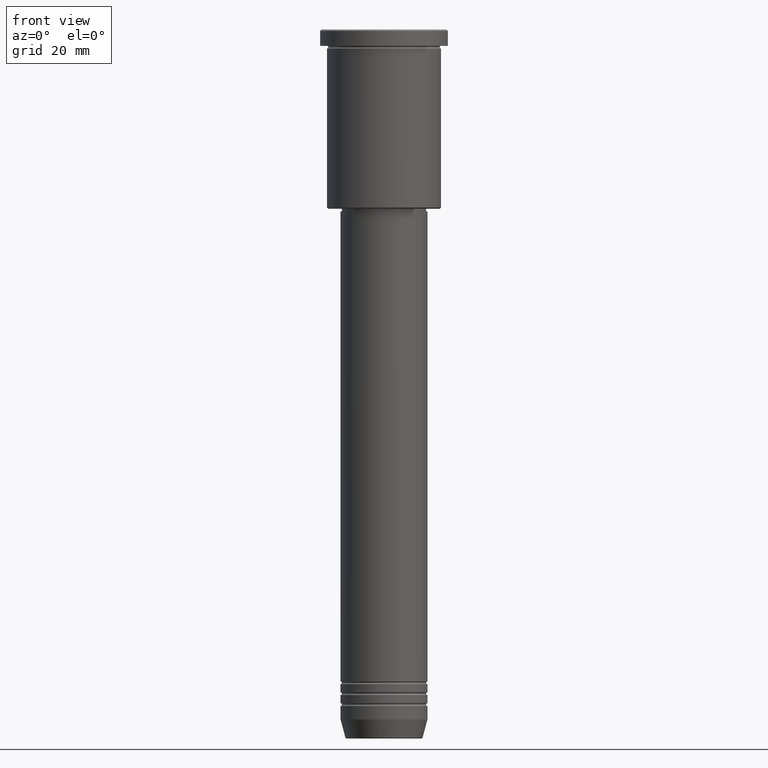
[diagram: clean part render]
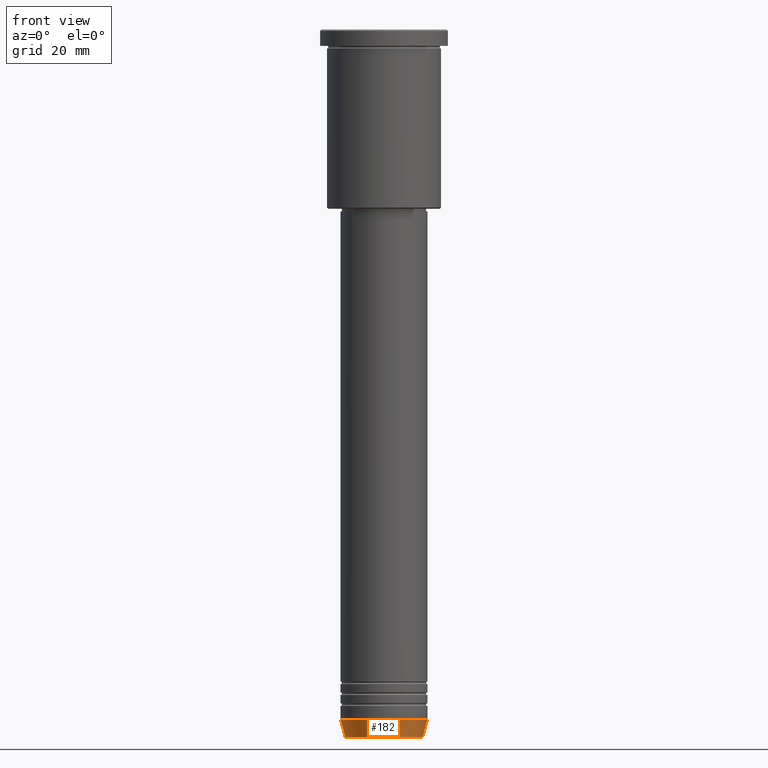
[diagram: same view with one face highlighted and labeled with its STEP entity id]
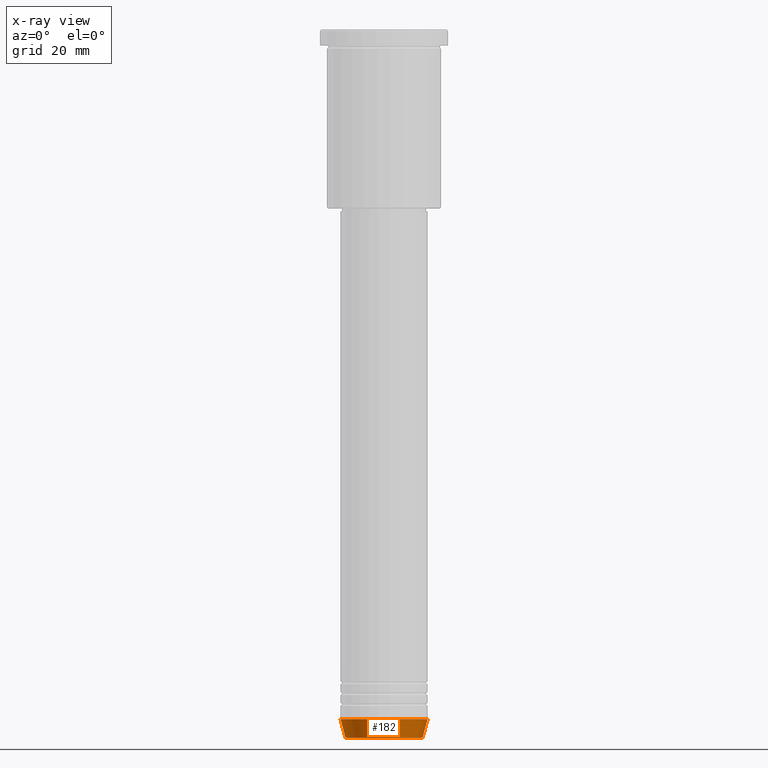
[diagram: x-ray of the same camera — body ghosted, the highlighted face saturated]
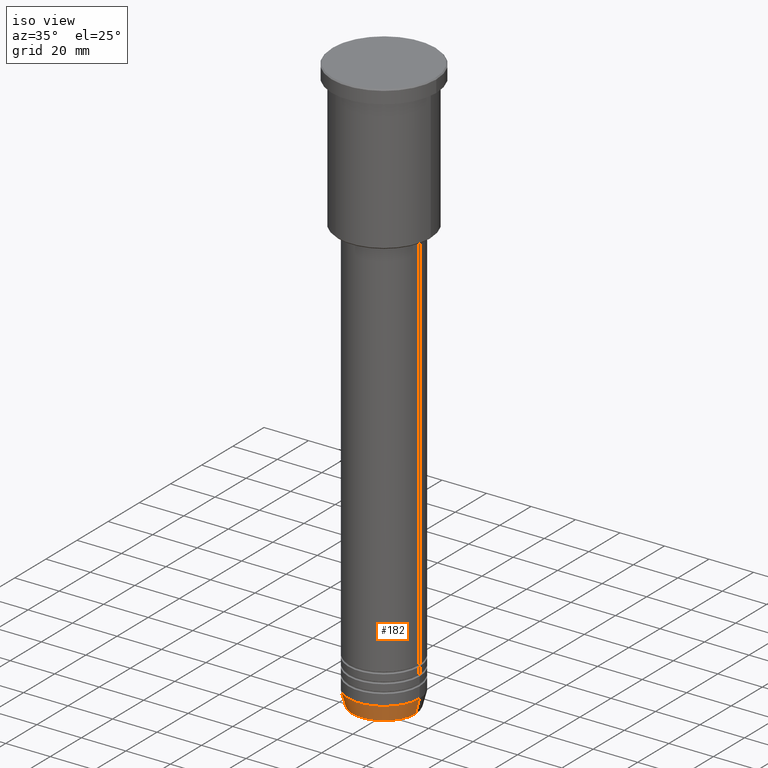
[diagram: same view with one face highlighted and labeled with its STEP entity id]
A machine part, front view. The second image highlights one B-rep face of the part: STEP entity #182.
The next image is the same camera in x-ray: the body ghosted, the highlighted face saturated — about 0% of this face is hidden behind the body in this view.
A second angle (iso view) of the same face is appended — the face is thin or edge-on in the first view.
In plain terms, the highlighted conical surface has half-angle 15 deg.
Its self-contained STEP definition (entity closure, byte-faithful):
#6 = AXIS2_PLACEMENT_3D ( 'NONE', #577, #383, #975 ) ;
#7 = VECTOR ( 'NONE', #51, 1000.000000000000000 ) ;
#44 = ORIENTED_EDGE ( 'NONE', *, *, #50, .T. ) ;
#50 = EDGE_CURVE ( 'NONE', #799, #390, #777, .T. ) ;
#51 = DIRECTION ( 'NONE',  ( 0.2588190451025213501, 0.000000000000000000, 0.9659258262890680902 ) ) ;
#56 = CARTESIAN_POINT ( 'NONE',  ( 16.00000000000000000, 0.000000000000000000, -254.0000000000000000 ) ) ;
#81 = ORIENTED_EDGE ( 'NONE', *, *, #566, .F. ) ;
#127 = VERTEX_POINT ( 'NONE', #366 ) ;
#180 = DIRECTION ( 'NONE',  ( -0.000000000000000000, -0.000000000000000000, 1.000000000000000000 ) ) ;
#182 = ADVANCED_FACE ( 'NONE', ( #663 ), #1043, .T. ) ;
#183 = AXIS2_PLACEMENT_3D ( 'NONE', #270, #180, #449 ) ;
#245 = LINE ( 'NONE', #797, #744 ) ;
#259 = AXIS2_PLACEMENT_3D ( 'NONE', #491, #845, #940 ) ;
#270 = CARTESIAN_POINT ( 'NONE',  ( 0.000000000000000000, 0.000000000000000000, -254.0000000000000000 ) ) ;
#289 = VERTEX_POINT ( 'NONE', #56 ) ;
#366 = CARTESIAN_POINT ( 'NONE',  ( -16.00000000000000000, 1.959434878635765131E-15, -254.0000000000000000 ) ) ;
#383 = DIRECTION ( 'NONE',  ( -0.000000000000000000, -0.000000000000000000, 1.000000000000000000 ) ) ;
#390 = VERTEX_POINT ( 'NONE', #1171 ) ;
#400 = CARTESIAN_POINT ( 'NONE',  ( 16.00000000000000000, 0.000000000000000000, -254.0000000000000000 ) ) ;
#449 = DIRECTION ( 'NONE',  ( 1.000000000000000000, 0.000000000000000000, 0.000000000000000000 ) ) ;
#480 = EDGE_CURVE ( 'NONE', #390, #289, #792, .T. ) ;
#491 = CARTESIAN_POINT ( 'NONE',  ( 0.000000000000000000, 0.000000000000000000, -260.6294095225512706 ) ) ;
#505 = CARTESIAN_POINT ( 'NONE',  ( -14.22365507213718772, 1.850665122131323337E-15, -260.6294095225512706 ) ) ;
#566 = EDGE_CURVE ( 'NONE', #799, #127, #245, .T. ) ;
#577 = CARTESIAN_POINT ( 'NONE',  ( 0.000000000000000000, 0.000000000000000000, -254.0000000000000000 ) ) ;
#663 = FACE_OUTER_BOUND ( 'NONE', #789, .T. ) ;
#744 = VECTOR ( 'NONE', #978, 1000.000000000000000 ) ;
#777 = CIRCLE ( 'NONE', #259, 14.22365507213718772 ) ;
#789 = EDGE_LOOP ( 'NONE', ( #81, #44, #861, #1064 ) ) ;
#792 = LINE ( 'NONE', #400, #7 ) ;
#797 = CARTESIAN_POINT ( 'NONE',  ( -16.00000000000000000, 1.959434878635765131E-15, -254.0000000000000000 ) ) ;
#799 = VERTEX_POINT ( 'NONE', #505 ) ;
#845 = DIRECTION ( 'NONE',  ( -0.000000000000000000, -0.000000000000000000, 1.000000000000000000 ) ) ;
#861 = ORIENTED_EDGE ( 'NONE', *, *, #480, .T. ) ;
#939 = EDGE_CURVE ( 'NONE', #127, #289, #1048, .T. ) ;
#940 = DIRECTION ( 'NONE',  ( 1.000000000000000000, 0.000000000000000000, 0.000000000000000000 ) ) ;
#975 = DIRECTION ( 'NONE',  ( 1.000000000000000000, 0.000000000000000000, 0.000000000000000000 ) ) ;
#978 = DIRECTION ( 'NONE',  ( -0.2588190451025213501, 3.169619151431772337E-17, 0.9659258262890680902 ) ) ;
#1043 = CONICAL_SURFACE ( 'NONE', #6, 16.00000000000000000, 0.2617993877991500740 ) ;
#1048 = CIRCLE ( 'NONE', #183, 16.00000000000000000 ) ;
#1064 = ORIENTED_EDGE ( 'NONE', *, *, #939, .F. ) ;
#1171 = CARTESIAN_POINT ( 'NONE',  ( 14.22365507213718772, 0.000000000000000000, -260.6294095225512706 ) ) ;